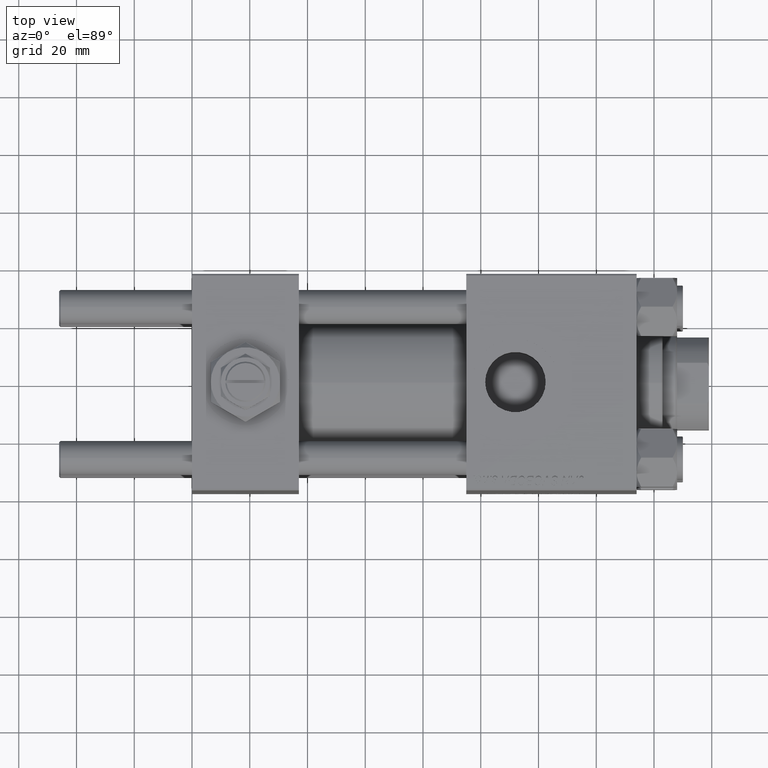
[diagram: clean part render]
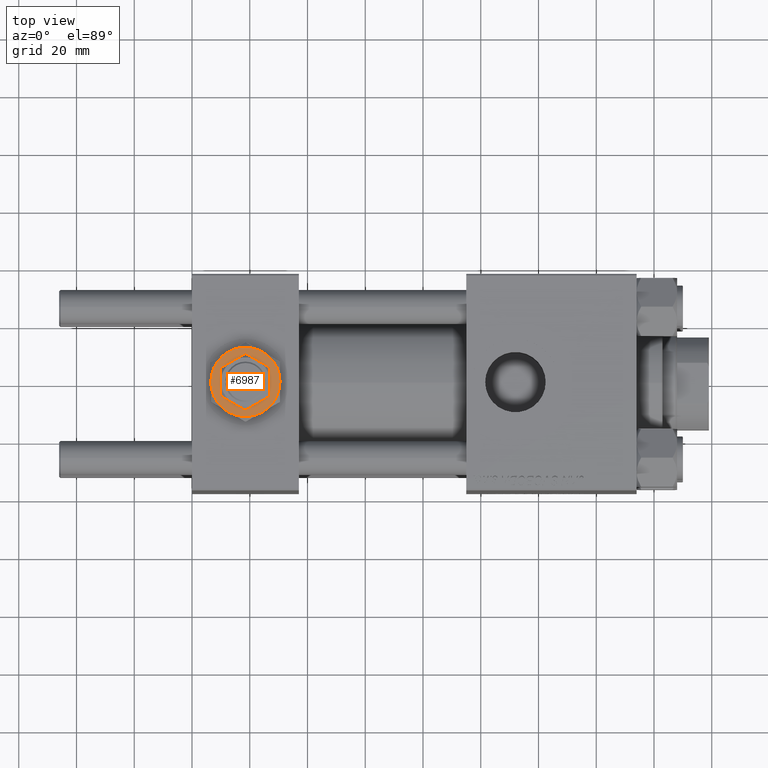
[diagram: same view with one face highlighted and labeled with its STEP entity id]
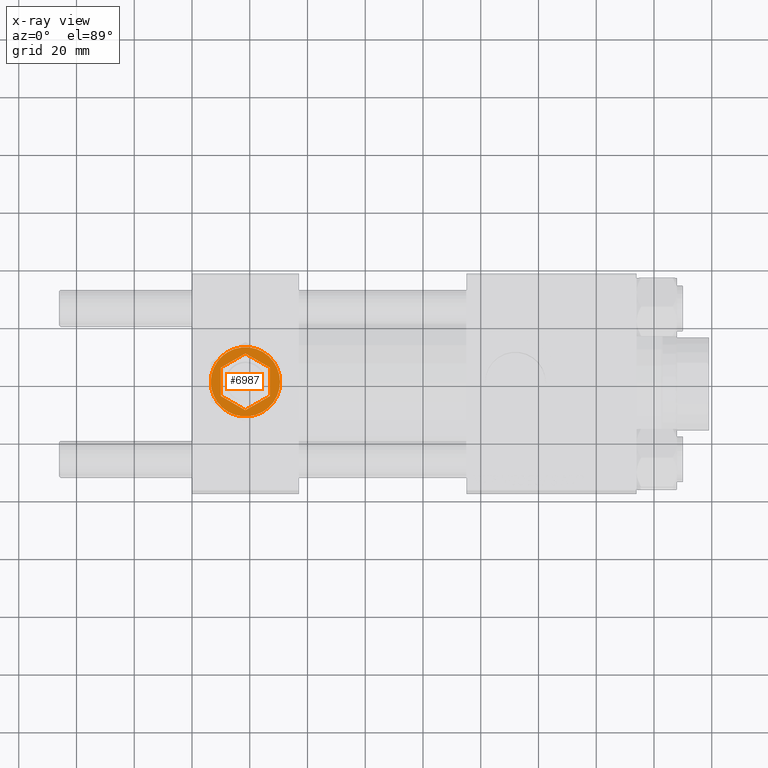
[diagram: x-ray of the same camera — body ghosted, the highlighted face saturated]
A machine part, top view. The second image highlights one B-rep face of the part: STEP entity #6987.
The next image is the same camera in x-ray: the body ghosted, the highlighted face saturated — about 0% of this face is hidden behind the body in this view.
In plain terms, the highlighted planar face has unit normal (0, 0, 1).
Its self-contained STEP definition (entity closure, byte-faithful):
#95 = EDGE_CURVE ( 'NONE', #2965, #31026, #29329, .T. ) ;
#152 = DIRECTION ( 'NONE',  ( -0.8660254037844385966, -0.5000000000000000000, 0.000000000000000000 ) ) ;
#216 = CARTESIAN_POINT ( 'NONE',  ( 0.000000000000000000, 0.000000000000000000, 4.299999999999999822 ) ) ;
#338 = ORIENTED_EDGE ( 'NONE', *, *, #34413, .T. ) ;
#848 = VECTOR ( 'NONE', #22121, 1000.000000000000114 ) ;
#1375 = EDGE_CURVE ( 'NONE', #6735, #35129, #31704, .T. ) ;
#1730 = CIRCLE ( 'NONE', #40189, 12.00000000000000178 ) ;
#2111 = LINE ( 'NONE', #30102, #33376 ) ;
#2233 = EDGE_LOOP ( 'NONE', ( #29046, #47619, #5273, #22491, #51612, #3731 ) ) ;
#2965 = VERTEX_POINT ( 'NONE', #3322 ) ;
#3322 = CARTESIAN_POINT ( 'NONE',  ( 8.499999999999996447, 4.907477288111821601, 4.299999999999999822 ) ) ;
#3511 = CARTESIAN_POINT ( 'NONE',  ( -2.644623992720612091E-15, -9.814954576223637872, 4.299999999999999822 ) ) ;
#3612 = LINE ( 'NONE', #36050, #45555 ) ;
#3731 = ORIENTED_EDGE ( 'NONE', *, *, #40037, .F. ) ;
#3963 = EDGE_CURVE ( 'NONE', #49735, #35130, #6671, .T. ) ;
#4354 = AXIS2_PLACEMENT_3D ( 'NONE', #41248, #5393, #12744 ) ;
#4474 = EDGE_CURVE ( 'NONE', #47612, #22241, #1730, .T. ) ;
#5273 = ORIENTED_EDGE ( 'NONE', *, *, #10775, .F. ) ;
#5393 = DIRECTION ( 'NONE',  ( 0.000000000000000000, 0.000000000000000000, 1.000000000000000000 ) ) ;
#5502 = CARTESIAN_POINT ( 'NONE',  ( -8.500000000000000000, 4.907477288111818048, 4.299999999999999822 ) ) ;
#6671 = LINE ( 'NONE', #14265, #848 ) ;
#6735 = VERTEX_POINT ( 'NONE', #32665 ) ;
#6987 = ADVANCED_FACE ( 'NONE', ( #19818, #35762 ), #51234, .T. ) ;
#7312 = CARTESIAN_POINT ( 'NONE',  ( 11.99999999999999645, 3.004629197474318063E-15, 4.299999999999999822 ) ) ;
#7505 = CARTESIAN_POINT ( 'NONE',  ( 0.000000000000000000, 0.000000000000000000, 4.299999999999999822 ) ) ;
#8520 = VECTOR ( 'NONE', #152, 1000.000000000000227 ) ;
#8571 = DIRECTION ( 'NONE',  ( 0.000000000000000000, 0.000000000000000000, 1.000000000000000000 ) ) ;
#8835 = VERTEX_POINT ( 'NONE', #30146 ) ;
#8869 = DIRECTION ( 'NONE',  ( 0.000000000000000000, 0.000000000000000000, 1.000000000000000000 ) ) ;
#8989 = AXIS2_PLACEMENT_3D ( 'NONE', #36422, #20739, #12876 ) ;
#9632 = DIRECTION ( 'NONE',  ( 1.000000000000000000, 0.000000000000000000, 0.000000000000000000 ) ) ;
#10073 = DIRECTION ( 'NONE',  ( -3.534857879381550604E-16, 1.000000000000000000, 0.000000000000000000 ) ) ;
#10775 = EDGE_CURVE ( 'NONE', #35130, #2965, #17944, .T. ) ;
#11135 = VECTOR ( 'NONE', #10073, 1000.000000000000000 ) ;
#11497 = CIRCLE ( 'NONE', #8989, 12.00000000000000178 ) ;
#12744 = DIRECTION ( 'NONE',  ( 1.000000000000000000, 0.000000000000000000, 0.000000000000000000 ) ) ;
#12876 = DIRECTION ( 'NONE',  ( 1.000000000000000000, 0.000000000000000000, 0.000000000000000000 ) ) ;
#13395 = EDGE_CURVE ( 'NONE', #31026, #43920, #46758, .T. ) ;
#13616 = ORIENTED_EDGE ( 'NONE', *, *, #28851, .T. ) ;
#14265 = CARTESIAN_POINT ( 'NONE',  ( -2.644623992720612091E-15, -9.814954576223637872, 4.299999999999999822 ) ) ;
#14360 = CARTESIAN_POINT ( 'NONE',  ( 0.000000000000000000, 0.000000000000000000, 4.299999999999999822 ) ) ;
#15602 = CARTESIAN_POINT ( 'NONE',  ( -6.000000000000000000, -10.39230484541326582, 4.299999999999999822 ) ) ;
#16462 = EDGE_CURVE ( 'NONE', #35129, #46245, #44465, .T. ) ;
#16899 = CIRCLE ( 'NONE', #4354, 12.00000000000000178 ) ;
#17111 = EDGE_CURVE ( 'NONE', #22241, #45980, #16899, .T. ) ;
#17588 = CARTESIAN_POINT ( 'NONE',  ( 6.000000000000000888, 10.39230484541326582, 4.299999999999999822 ) ) ;
#17944 = LINE ( 'NONE', #45945, #11135 ) ;
#19171 = AXIS2_PLACEMENT_3D ( 'NONE', #48172, #28258, #40304 ) ;
#19328 = DIRECTION ( 'NONE',  ( 0.000000000000000000, -1.000000000000000000, 0.000000000000000000 ) ) ;
#19818 = FACE_OUTER_BOUND ( 'NONE', #20776, .T. ) ;
#19922 = ORIENTED_EDGE ( 'NONE', *, *, #17111, .T. ) ;
#20630 = ORIENTED_EDGE ( 'NONE', *, *, #16462, .T. ) ;
#20739 = DIRECTION ( 'NONE',  ( 0.000000000000000000, 0.000000000000000000, 1.000000000000000000 ) ) ;
#20776 = EDGE_LOOP ( 'NONE', ( #42710, #19922, #338, #22502, #20630, #13616 ) ) ;
#22121 = DIRECTION ( 'NONE',  ( 0.8660254037844388186, 0.4999999999999997224, 0.000000000000000000 ) ) ;
#22241 = VERTEX_POINT ( 'NONE', #7312 ) ;
#22297 = AXIS2_PLACEMENT_3D ( 'NONE', #14360, #43325, #46292 ) ;
#22491 = ORIENTED_EDGE ( 'NONE', *, *, #3963, .F. ) ;
#22502 = ORIENTED_EDGE ( 'NONE', *, *, #1375, .T. ) ;
#22926 = CARTESIAN_POINT ( 'NONE',  ( 0.000000000000000000, 9.814954576223637872, 4.299999999999999822 ) ) ;
#24029 = DIRECTION ( 'NONE',  ( 1.000000000000000000, 0.000000000000000000, 0.000000000000000000 ) ) ;
#24394 = CARTESIAN_POINT ( 'NONE',  ( 8.499999999999996447, 4.907477288111821601, 4.299999999999999822 ) ) ;
#26013 = AXIS2_PLACEMENT_3D ( 'NONE', #7505, #51753, #39435 ) ;
#26178 = DIRECTION ( 'NONE',  ( 0.8660254037844385966, -0.5000000000000001110, 0.000000000000000000 ) ) ;
#28258 = DIRECTION ( 'NONE',  ( 0.000000000000000000, 0.000000000000000000, 1.000000000000000000 ) ) ;
#28851 = EDGE_CURVE ( 'NONE', #46245, #47612, #44869, .T. ) ;
#29046 = ORIENTED_EDGE ( 'NONE', *, *, #13395, .F. ) ;
#29329 = LINE ( 'NONE', #24394, #36673 ) ;
#30102 = CARTESIAN_POINT ( 'NONE',  ( -8.500000000000000000, -4.907477288111819824, 4.299999999999999822 ) ) ;
#30146 = CARTESIAN_POINT ( 'NONE',  ( -8.500000000000000000, -4.907477288111819824, 4.299999999999999822 ) ) ;
#31026 = VERTEX_POINT ( 'NONE', #33622 ) ;
#31083 = AXIS2_PLACEMENT_3D ( 'NONE', #216, #8571, #24029 ) ;
#31704 = CIRCLE ( 'NONE', #19171, 12.00000000000000178 ) ;
#32665 = CARTESIAN_POINT ( 'NONE',  ( -6.000000000000001776, 10.39230484541326405, 4.299999999999999822 ) ) ;
#33376 = VECTOR ( 'NONE', #26178, 1000.000000000000114 ) ;
#33622 = CARTESIAN_POINT ( 'NONE',  ( 0.000000000000000000, 9.814954576223637872, 4.299999999999999822 ) ) ;
#34413 = EDGE_CURVE ( 'NONE', #45980, #6735, #11497, .T. ) ;
#35129 = VERTEX_POINT ( 'NONE', #37522 ) ;
#35130 = VERTEX_POINT ( 'NONE', #49580 ) ;
#35533 = CARTESIAN_POINT ( 'NONE',  ( 5.999999999999998224, -10.39230484541326760, 4.299999999999999822 ) ) ;
#35762 = FACE_BOUND ( 'NONE', #2233, .T. ) ;
#36050 = CARTESIAN_POINT ( 'NONE',  ( -8.500000000000000000, 4.907477288111818048, 4.299999999999999822 ) ) ;
#36422 = CARTESIAN_POINT ( 'NONE',  ( 0.000000000000000000, 0.000000000000000000, 4.299999999999999822 ) ) ;
#36673 = VECTOR ( 'NONE', #45307, 1000.000000000000114 ) ;
#37522 = CARTESIAN_POINT ( 'NONE',  ( -12.00000000000000178, 0.000000000000000000, 4.299999999999999822 ) ) ;
#38617 = EDGE_CURVE ( 'NONE', #8835, #49735, #2111, .T. ) ;
#39435 = DIRECTION ( 'NONE',  ( 1.000000000000000000, 0.000000000000000000, -0.000000000000000000 ) ) ;
#40037 = EDGE_CURVE ( 'NONE', #43920, #8835, #3612, .T. ) ;
#40189 = AXIS2_PLACEMENT_3D ( 'NONE', #49443, #8869, #9632 ) ;
#40304 = DIRECTION ( 'NONE',  ( 1.000000000000000000, 0.000000000000000000, 0.000000000000000000 ) ) ;
#41248 = CARTESIAN_POINT ( 'NONE',  ( 0.000000000000000000, 0.000000000000000000, 4.299999999999999822 ) ) ;
#42710 = ORIENTED_EDGE ( 'NONE', *, *, #4474, .T. ) ;
#43325 = DIRECTION ( 'NONE',  ( 0.000000000000000000, 0.000000000000000000, 1.000000000000000000 ) ) ;
#43920 = VERTEX_POINT ( 'NONE', #5502 ) ;
#44465 = CIRCLE ( 'NONE', #31083, 12.00000000000000178 ) ;
#44869 = CIRCLE ( 'NONE', #22297, 12.00000000000000178 ) ;
#45307 = DIRECTION ( 'NONE',  ( -0.8660254037844387076, 0.4999999999999998890, 0.000000000000000000 ) ) ;
#45555 = VECTOR ( 'NONE', #19328, 1000.000000000000000 ) ;
#45945 = CARTESIAN_POINT ( 'NONE',  ( 8.500000000000000000, -4.907477288111819824, 4.299999999999999822 ) ) ;
#45980 = VERTEX_POINT ( 'NONE', #17588 ) ;
#46245 = VERTEX_POINT ( 'NONE', #15602 ) ;
#46292 = DIRECTION ( 'NONE',  ( 1.000000000000000000, 0.000000000000000000, 0.000000000000000000 ) ) ;
#46758 = LINE ( 'NONE', #22926, #8520 ) ;
#47612 = VERTEX_POINT ( 'NONE', #35533 ) ;
#47619 = ORIENTED_EDGE ( 'NONE', *, *, #95, .F. ) ;
#48172 = CARTESIAN_POINT ( 'NONE',  ( 0.000000000000000000, 0.000000000000000000, 4.299999999999999822 ) ) ;
#49443 = CARTESIAN_POINT ( 'NONE',  ( 0.000000000000000000, 0.000000000000000000, 4.299999999999999822 ) ) ;
#49580 = CARTESIAN_POINT ( 'NONE',  ( 8.500000000000000000, -4.907477288111819824, 4.299999999999999822 ) ) ;
#49735 = VERTEX_POINT ( 'NONE', #3511 ) ;
#51234 = PLANE ( 'NONE',  #26013 ) ;
#51612 = ORIENTED_EDGE ( 'NONE', *, *, #38617, .F. ) ;
#51753 = DIRECTION ( 'NONE',  ( 0.000000000000000000, 0.000000000000000000, 1.000000000000000000 ) ) ;